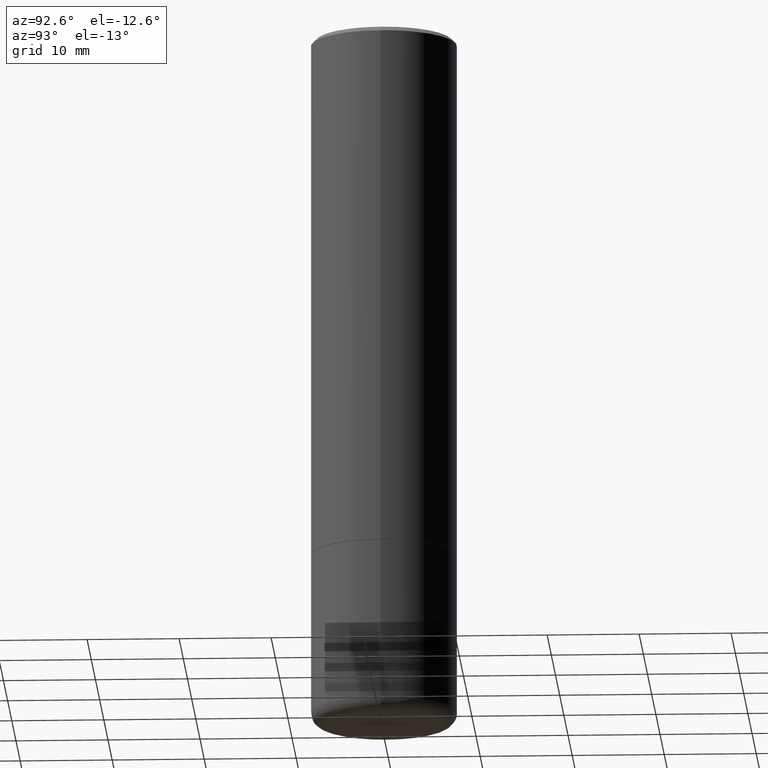
[diagram: clean part render]
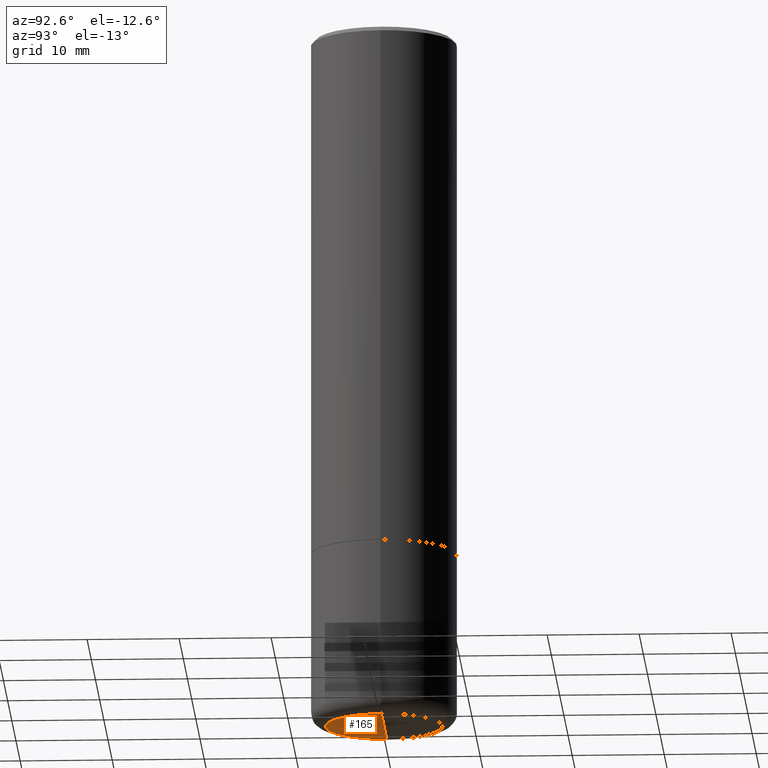
[diagram: same view with one face highlighted and labeled with its STEP entity id]
A machine part, auxiliary view. The second image highlights one B-rep face of the part: STEP entity #165.
In plain terms, the highlighted conical surface has half-angle 89 deg.
Its self-contained STEP definition (entity closure, byte-faithful):
#5 = EDGE_CURVE ( 'NONE', #424, #370, #228, .T. ) ;
#11 = DIRECTION ( 'NONE',  ( -1.000000000000000000, 6.982962677686267499E-15, 0.000000000000000000 ) ) ;
#20 = ORIENTED_EDGE ( 'NONE', *, *, #5, .F. ) ;
#31 = CARTESIAN_POINT ( 'NONE',  ( 0.2514528556137646809, -1.219950392283044754E-14, -2.999990861709383783 ) ) ;
#55 = VECTOR ( 'NONE', #252, 39.37007874015747433 ) ;
#61 = ORIENTED_EDGE ( 'NONE', *, *, #117, .T. ) ;
#67 = CARTESIAN_POINT ( 'NONE',  ( 7.325329725114651997E-29, -1.045954707110368727E-14, -2.995601735788262054 ) ) ;
#77 = LINE ( 'NONE', #171, #55 ) ;
#97 = VECTOR ( 'NONE', #379, 39.37007874015747433 ) ;
#101 = CARTESIAN_POINT ( 'NONE',  ( -0.2514528556137646809, -8.718526204409729292E-15, -2.999990861709383783 ) ) ;
#117 = EDGE_CURVE ( 'NONE', #363, #370, #77, .T. ) ;
#129 = DIRECTION ( 'NONE',  ( -2.445468806185136597E-29, 3.491481338843145583E-15, 1.000000000000000000 ) ) ;
#137 = CARTESIAN_POINT ( 'NONE',  ( 1.036039500567319897E-27, -1.479189827891559607E-13, -42.36568047594574438 ) ) ;
#141 = FACE_OUTER_BOUND ( 'NONE', #187, .T. ) ;
#145 = AXIS2_PLACEMENT_3D ( 'NONE', #137, #341, #11 ) ;
#157 = DIRECTION ( 'NONE',  ( 1.000000000000000000, -6.982962677686269077E-15, 0.000000000000000000 ) ) ;
#164 = AXIS2_PLACEMENT_3D ( 'NONE', #269, #129, #157 ) ;
#165 = ADVANCED_FACE ( 'NONE', ( #141 ), #338, .F. ) ;
#171 = CARTESIAN_POINT ( 'NONE',  ( 4.595119929091913047E-19, -1.045908755911085019E-14, -2.995601735788262054 ) ) ;
#182 = EDGE_CURVE ( 'NONE', #363, #424, #384, .T. ) ;
#187 = EDGE_LOOP ( 'NONE', ( #261, #61, #20 ) ) ;
#228 = CIRCLE ( 'NONE', #164, 0.2514528556137634041 ) ;
#243 = CARTESIAN_POINT ( 'NONE',  ( -4.595119927626783027E-19, -1.045908755911085019E-14, -2.995601735788262054 ) ) ;
#252 = DIRECTION ( 'NONE',  ( 0.9998476951563914916, -6.920387862090557146E-15, -0.01745240643727538621 ) ) ;
#261 = ORIENTED_EDGE ( 'NONE', *, *, #182, .F. ) ;
#269 = CARTESIAN_POINT ( 'NONE',  ( 7.336384071150766432E-29, -1.047441211035828263E-14, -2.999990861709383783 ) ) ;
#338 = CONICAL_SURFACE ( 'NONE', #145, 2255.510300424650723, 1.553343034274961454 ) ;
#341 = DIRECTION ( 'NONE',  ( 2.445468806185136597E-29, -3.491481338843145583E-15, -1.000000000000000000 ) ) ;
#363 = VERTEX_POINT ( 'NONE', #67 ) ;
#370 = VERTEX_POINT ( 'NONE', #31 ) ;
#379 = DIRECTION ( 'NONE',  ( -0.9998476951563914916, 6.920964387254065466E-15, -0.01745240643727538621 ) ) ;
#384 = LINE ( 'NONE', #243, #97 ) ;
#424 = VERTEX_POINT ( 'NONE', #101 ) ;